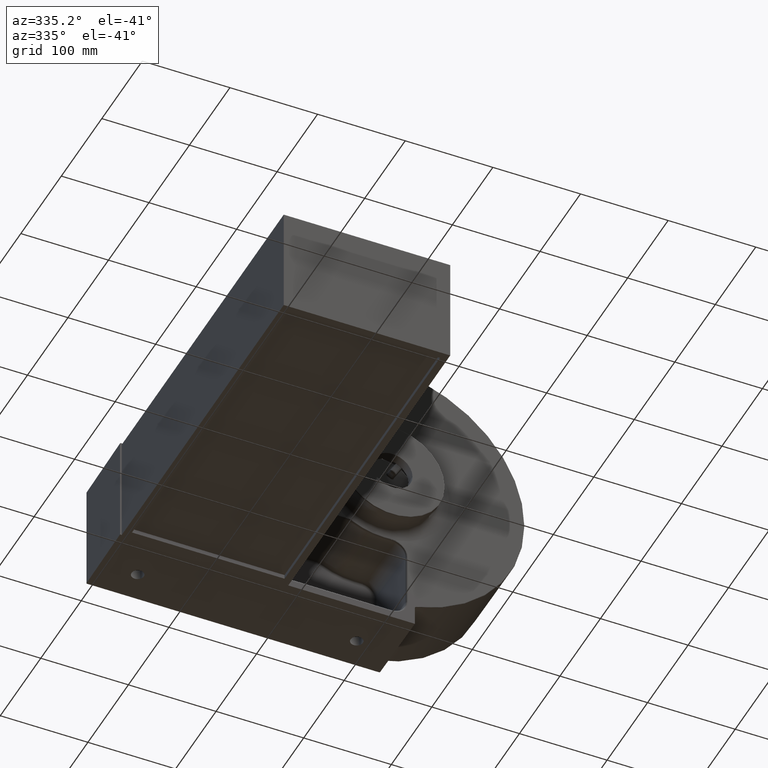
[diagram: clean part render]
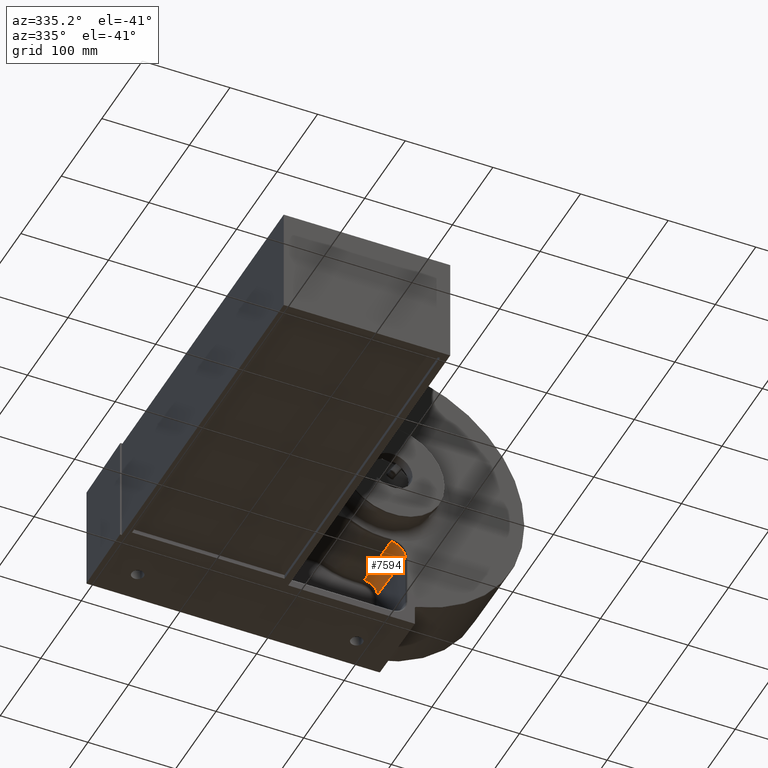
[diagram: same view with one face highlighted and labeled with its STEP entity id]
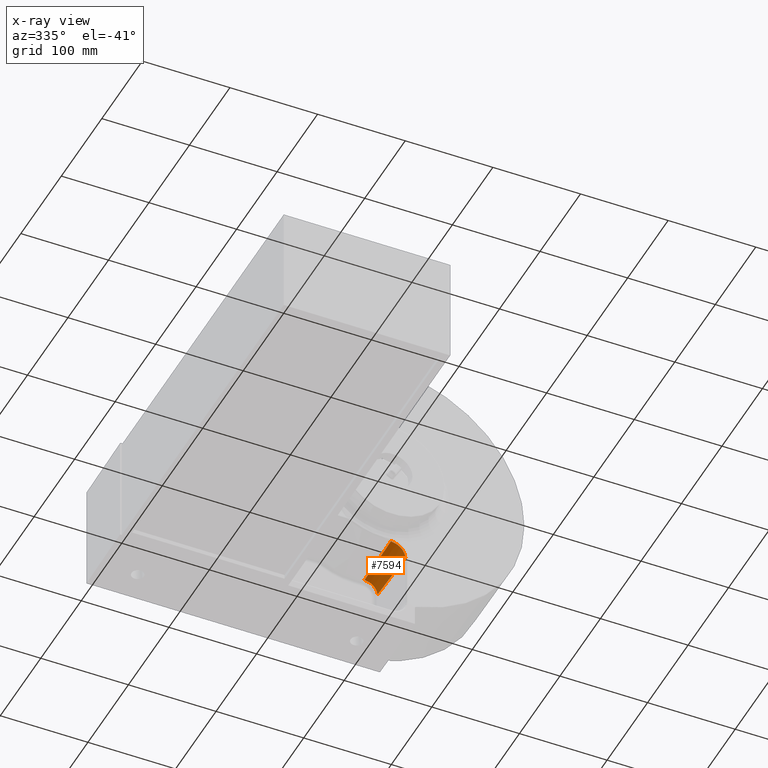
[diagram: x-ray of the same camera — body ghosted, the highlighted face saturated]
A machine part, auxiliary view. The second image highlights one B-rep face of the part: STEP entity #7594.
The next image is the same camera in x-ray: the body ghosted, the highlighted face saturated — about 0% of this face is hidden behind the body in this view.
In plain terms, the highlighted conical surface has half-angle 1.5 deg.
Its self-contained STEP definition (entity closure, byte-faithful):
#39 = CARTESIAN_POINT ( 'NONE',  ( 307.9835675244290201, 401.8924571655795717, -19.04955835350308035 ) ) ;
#92 = VERTEX_POINT ( 'NONE', #1019 ) ;
#153 = EDGE_CURVE ( 'NONE', #11273, #4813, #3620, .T. ) ;
#977 = VECTOR ( 'NONE', #1092, 1000.000000000000114 ) ;
#1019 = CARTESIAN_POINT ( 'NONE',  ( 324.4325666163212532, 401.9475461033842407, -35.49999999999997868 ) ) ;
#1092 = DIRECTION ( 'NONE',  ( 0.02617694830787308663, -0.9996573249755572599, -0.0000000000000000000 ) ) ;
#1374 = EDGE_CURVE ( 'NONE', #7293, #11273, #9046, .T. ) ;
#2085 = CONICAL_SURFACE ( 'NONE', #8556, 16.50000000000001421, 0.02617993877991500046 ) ;
#2196 = CARTESIAN_POINT ( 'NONE',  ( 312.2375776349129524, 401.9475461033841270, -19.61060199047892638 ) ) ;
#2219 = CARTESIAN_POINT ( 'NONE',  ( 307.9835675244290201, 467.1307847415393439, -20.75788408271206364 ) ) ;
#2244 = CARTESIAN_POINT ( 'NONE',  ( 311.5407299748607102, 401.9475461033842407, -19.42403752846766096 ) ) ;
#2302 = CARTESIAN_POINT ( 'NONE',  ( 310.8378207310171319, 401.9369613653369129, -19.28447322646616513 ) ) ;
#2987 = AXIS2_PLACEMENT_3D ( 'NONE', #4509, #4495, #4484 ) ;
#3002 = CARTESIAN_POINT ( 'NONE',  ( 309.4198985377182680, 401.9135254775089265, -19.09734128165083078 ) ) ;
#3056 = CARTESIAN_POINT ( 'NONE',  ( 308.7048856972974136, 401.9006685761233939, -19.04977337685555483 ) ) ;
#3113 = CARTESIAN_POINT ( 'NONE',  ( 307.9835675244290201, 401.8924571655795717, -19.04955835350308035 ) ) ;
#3392 = ORIENTED_EDGE ( 'NONE', *, *, #153, .F. ) ;
#3610 = CARTESIAN_POINT ( 'NONE',  ( 322.7256834417169102, 467.1307847415393439, -35.49999999999997868 ) ) ;
#3620 = B_SPLINE_CURVE_WITH_KNOTS ( 'NONE', 3,
 ( #3113, #3056, #3002, #2302, #2244, #2196 ),
 .UNSPECIFIED., .F., .F.,
 ( 4, 2, 4 ),
 ( 0.0000000000000000000, 0.002145600543773177639, 0.004291201087546355278 ),
 .UNSPECIFIED. ) ;
#4120 = EDGE_CURVE ( 'NONE', #9445, #7293, #11245, .T. ) ;
#4347 = ORIENTED_EDGE ( 'NONE', *, *, #9935, .T. ) ;
#4476 = CARTESIAN_POINT ( 'NONE',  ( 312.2375776349129524, 401.9475461033841270, -19.61060199047892638 ) ) ;
#4484 = DIRECTION ( 'NONE',  ( 1.000000000000000000, 0.0000000000000000000, -8.436858516610206574E-16 ) ) ;
#4495 = DIRECTION ( 'NONE',  ( 1.242786967863980845E-16, 1.000000000000000000, 0.0000000000000000000 ) ) ;
#4509 = CARTESIAN_POINT ( 'NONE',  ( 307.9835675244290201, 401.9475461033841270, -35.49999999999997868 ) ) ;
#4813 = VERTEX_POINT ( 'NONE', #4476 ) ;
#4869 = ORIENTED_EDGE ( 'NONE', *, *, #1374, .F. ) ;
#5454 = LINE ( 'NONE', #9050, #977 ) ;
#6183 = EDGE_LOOP ( 'NONE', ( #4869, #7161, #4347, #11236, #3392 ) ) ;
#7161 = ORIENTED_EDGE ( 'NONE', *, *, #4120, .F. ) ;
#7196 = EDGE_CURVE ( 'NONE', #4813, #92, #7987, .T. ) ;
#7293 = VERTEX_POINT ( 'NONE', #2219 ) ;
#7594 = ADVANCED_FACE ( 'NONE', ( #11139 ), #2085, .F. ) ;
#7987 = CIRCLE ( 'NONE', #2987, 16.44899909189223663 ) ;
#8556 = AXIS2_PLACEMENT_3D ( 'NONE', #11080, #11067, #11062 ) ;
#8649 = VECTOR ( 'NONE', #8943, 1000.000000000000114 ) ;
#8943 = DIRECTION ( 'NONE',  ( -1.243212985904312913E-16, -0.9996573249755572599, 0.02617694830787321153 ) ) ;
#9001 = CARTESIAN_POINT ( 'NONE',  ( 307.9835675244290201, 399.9999000000000251, -19.00000000000001776 ) ) ;
#9046 = LINE ( 'NONE', #9001, #8649 ) ;
#9050 = CARTESIAN_POINT ( 'NONE',  ( 324.4835675244289632, 399.9999000000000251, -35.49999999999997868 ) ) ;
#9445 = VERTEX_POINT ( 'NONE', #3610 ) ;
#9870 = AXIS2_PLACEMENT_3D ( 'NONE', #10232, #10168, #10153 ) ;
#9935 = EDGE_CURVE ( 'NONE', #9445, #92, #5454, .T. ) ;
#10153 = DIRECTION ( 'NONE',  ( -1.000000000000000000, 0.0000000000000000000, 0.0000000000000000000 ) ) ;
#10168 = DIRECTION ( 'NONE',  ( -1.242786967863980845E-16, -1.000000000000000000, 0.0000000000000000000 ) ) ;
#10232 = CARTESIAN_POINT ( 'NONE',  ( 307.9835675244290201, 467.1307847415393439, -35.49999999999997868 ) ) ;
#11062 = DIRECTION ( 'NONE',  ( -1.000000000000000000, 0.0000000000000000000, 0.0000000000000000000 ) ) ;
#11067 = DIRECTION ( 'NONE',  ( -1.242786967863980845E-16, -1.000000000000000000, 0.0000000000000000000 ) ) ;
#11080 = CARTESIAN_POINT ( 'NONE',  ( 307.9835675244290201, 399.9999000000000251, -35.49999999999997868 ) ) ;
#11139 = FACE_OUTER_BOUND ( 'NONE', #6183, .T. ) ;
#11236 = ORIENTED_EDGE ( 'NONE', *, *, #7196, .F. ) ;
#11245 = CIRCLE ( 'NONE', #9870, 14.74211591728791149 ) ;
#11273 = VERTEX_POINT ( 'NONE', #39 ) ;